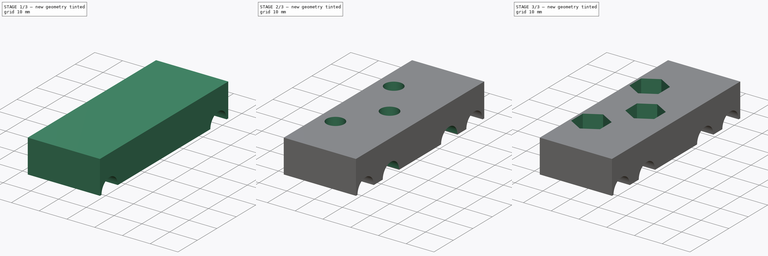
[diagram: build sequence overview — one tinted view per stage of 3, left to right]
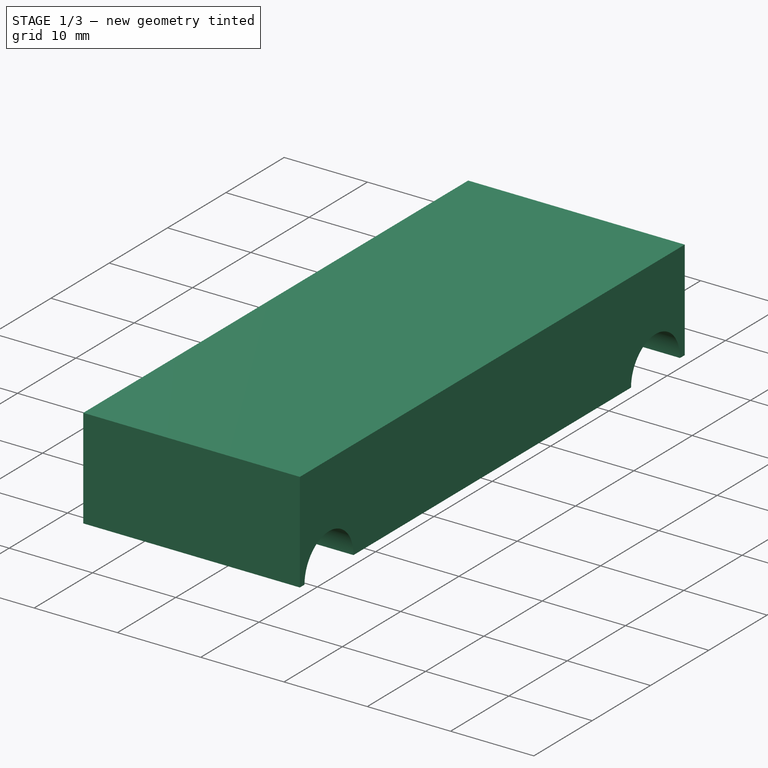
[diagram: stage 1 of 3 — iso view after this stage's code; geometry added in this stage tinted green]
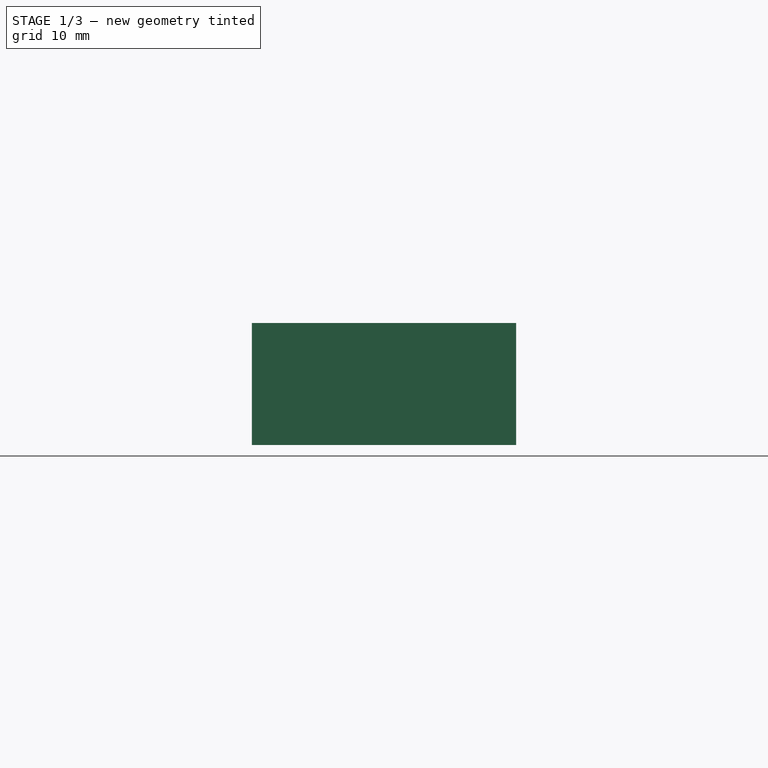
[diagram: stage 1 of 3 — front view after this stage's code; geometry added in this stage tinted green]
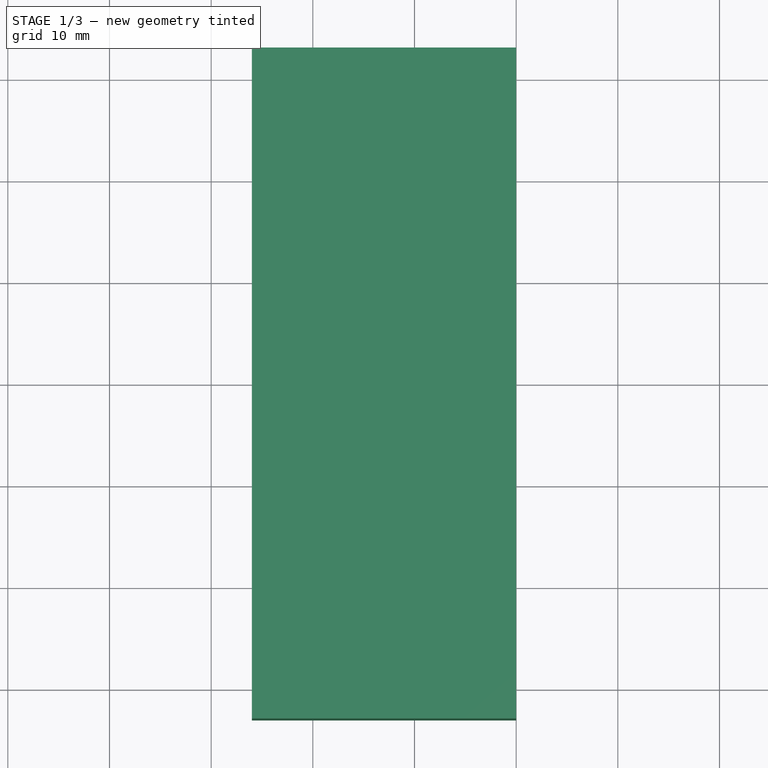
[diagram: stage 1 of 3 — top view after this stage's code; geometry added in this stage tinted green]
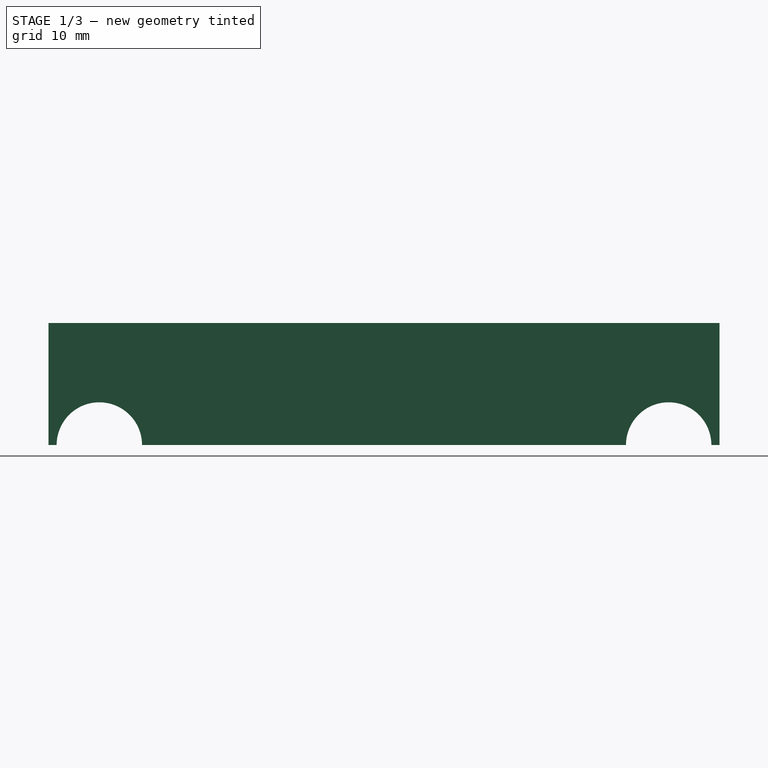
[diagram: stage 1 of 3 — right view after this stage's code; geometry added in this stage tinted green]
FCSTD DOCUMENT  (FreeCAD 0.18R16131 (Git))
Label: idlerSide_8mm_rods_short
License: All rights reserved
LicenseURL: http://en.wikipedia.org/wiki/All_rights_reserved
objects: Sketcher::SketchObject×7, PartDesign::Pocket×6, PartDesign::Pad×1, PartDesign::Body×1
note: 22 computed .brp shape members not serialized (recipe doc carries the construction recipe); baked Part::Feature solids carry a one-line shape summary decoded from their .brp

FEATURE [Sketcher::SketchObject] Sketch
  MapMode = 5
  Support = -> [XY_Plane]
  sketch-geometry (4):
    g0: LineSegment StartX=-26 StartY=33 StartZ=0 EndX=0 EndY=33 EndZ=0
    g1: LineSegment StartX=0 StartY=33 StartZ=0 EndX=0 EndY=-33 EndZ=0
    g2: LineSegment StartX=0 StartY=-33 StartZ=0 EndX=-26 EndY=-33 EndZ=0
    g3: LineSegment StartX=-26 StartY=-33 StartZ=0 EndX=-26 EndY=33 EndZ=0
  constraints (11):
    c: Coincident(g0,g1)
    c: Coincident(g1,g2)
    c: Coincident(g2,g3)
    c: Coincident(g3,g0)
    c: Horizontal(g0)
    c: Horizontal(g2)
    c: Vertical(g3)
    c: DistanceX(g2,g2) = 26
    c: DistanceY(g1,g1) = 66
    c: Symmetric(g1,g0,g-1)
    c: PointOnObject(g-1,g1)
FEATURE [PartDesign::Pad] Pad
  Length = 12
  Length2 = 100
  Profile = -> Sketch
  Type = 0
FEATURE [Sketcher::SketchObject] Sketch001
  MapMode = 5
  Placement = pos=(-26,0,0) rot=(0.57735,-0.57735,-0.57735;2.0944rad)
  Support = -> [Pad]
  sketch-geometry (2):
    g0: Circle CenterX=-28 CenterY=0 CenterZ=0 NormalX=0 NormalY=0 NormalZ=1 AngleXU=0 Radius=4.2
    g1: Circle CenterX=28 CenterY=0 CenterZ=0 NormalX=0 NormalY=0 NormalZ=1 AngleXU=0 Radius=4.2
  constraints (5):
    c: Equal(g0,g1)
    c: Radius(g0) = 4.2
    c: Symmetric(g0,g1,g-2)
    c: PointOnObject(g0,g-1)
    c: DistanceX(g0,g1) = 56
FEATURE [PartDesign::Pocket] Pocket
  BaseFeature = -> Pad
  Length = 5
  Length2 = 100
  Profile = -> Sketch001
  Type = 1
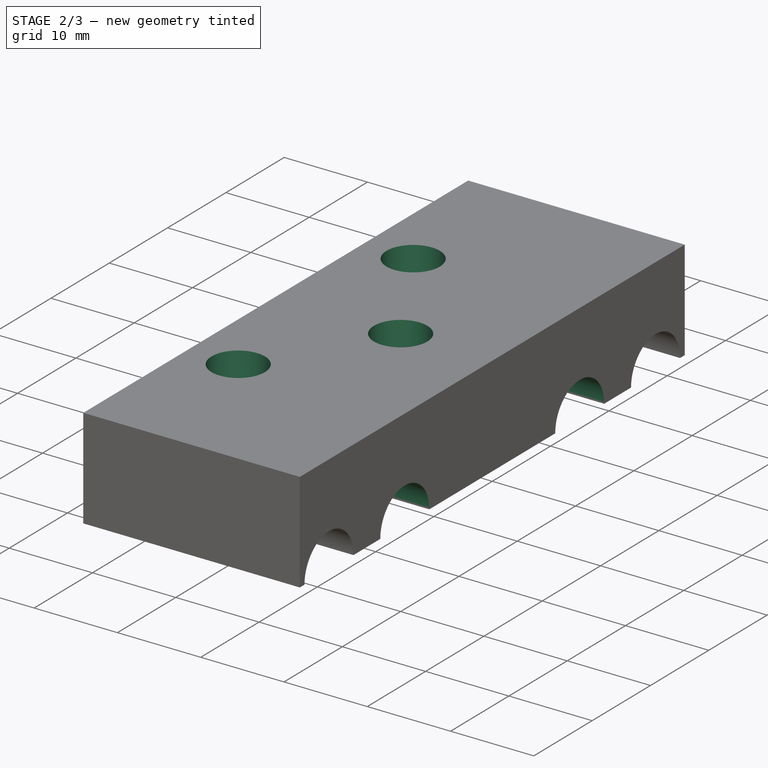
[diagram: stage 2 of 3 — iso view after this stage's code; geometry added in this stage tinted green]
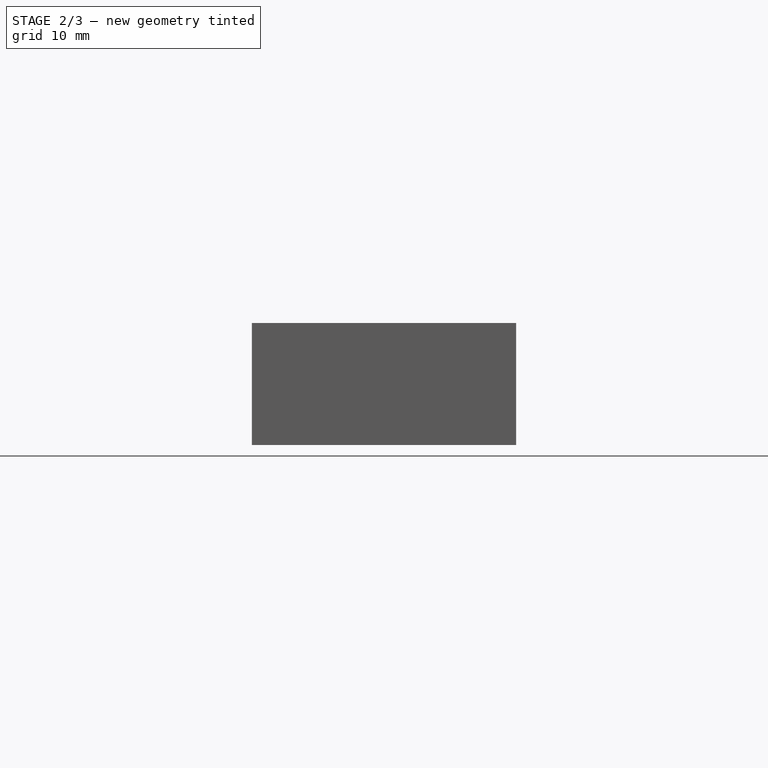
[diagram: stage 2 of 3 — front view after this stage's code; geometry added in this stage tinted green]
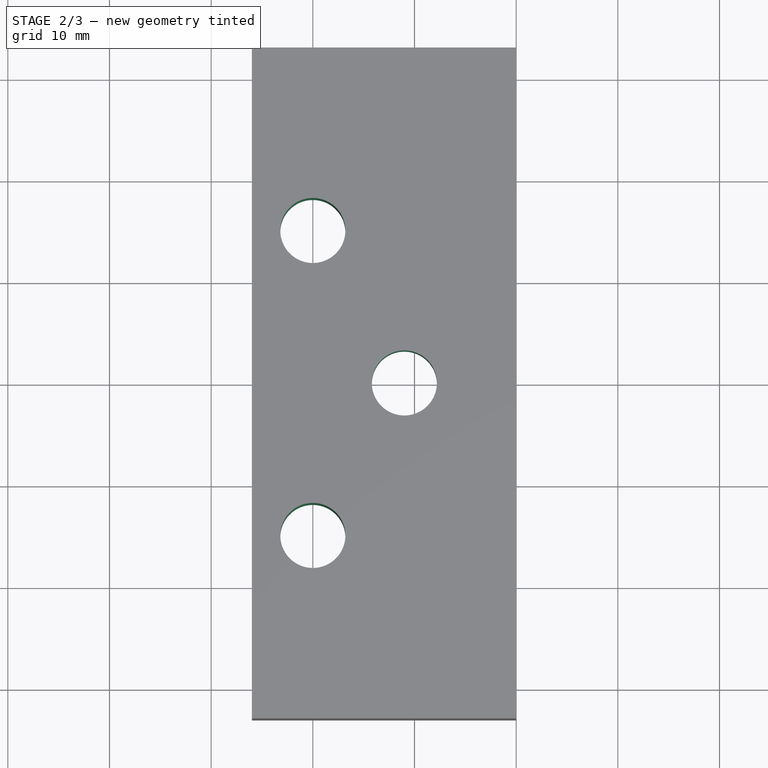
[diagram: stage 2 of 3 — top view after this stage's code; geometry added in this stage tinted green]
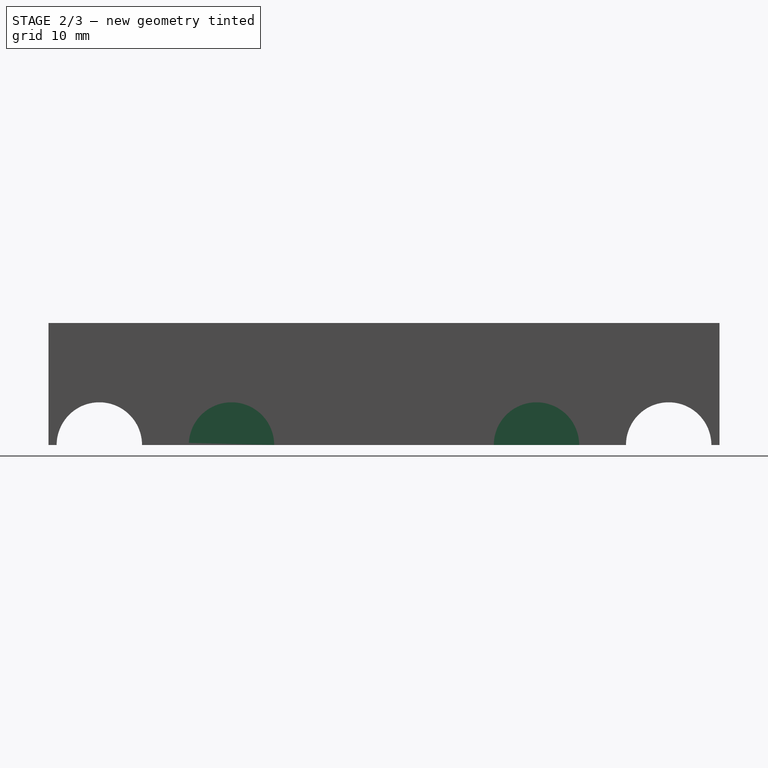
[diagram: stage 2 of 3 — right view after this stage's code; geometry added in this stage tinted green]
FEATURE [Sketcher::SketchObject] Sketch002
  MapMode = 5
  Placement = pos=(0,0,0) rot=(1,0,0;3.14159rad)
  Support = -> [Pocket]
  sketch-geometry (4):
    g0: ArcOfCircle CenterX=-11 CenterY=0 CenterZ=0 NormalX=0 NormalY=0 NormalZ=1 AngleXU=0 Radius=9 StartAngle=4.71239 EndAngle=7.85398
    g1: LineSegment StartX=-11 StartY=9 StartZ=0 EndX=-26 EndY=9 EndZ=0
    g2: LineSegment StartX=-26 StartY=9 StartZ=0 EndX=-26 EndY=-9 EndZ=0
    g3: LineSegment StartX=-26 StartY=-9 StartZ=0 EndX=-11 EndY=-9 EndZ=0
  constraints (13):
    c: PointOnObject(g0,g-1)
    c: Radius(g0) = 9
    c: DistanceX(g0,g-1) = 11
    c: Coincident(g1,g2)
    c: Coincident(g2,g3)
    c: Horizontal(g3)
    c: Horizontal(g1)
    c: Vertical(g2)
    c: Vertical(g3,g0)
    c: Vertical(g0,g1)
    c: DistanceX(g1,g-1) = 26
    c: Coincident(g0,g3)
    c: Coincident(g0,g1)
FEATURE [PartDesign::Pocket] Pocket001
  BaseFeature = -> Pocket
  Length = 4.5
  Length2 = 100
  Profile = -> Sketch002
  Type = 0
FEATURE [Sketcher::SketchObject] Sketch003
  ExternalGeometry = -> [Pocket001]
  MapMode = 5
  Placement = pos=(0,0,0) rot=(1,0,0;3.14159rad)
  Support = -> [Pocket001]
  sketch-geometry (3):
    g0: Circle CenterX=-11 CenterY=0 CenterZ=0 NormalX=0 NormalY=0 NormalZ=1 AngleXU=0 Radius=3.2
    g1: Circle CenterX=-20 CenterY=15 CenterZ=0 NormalX=0 NormalY=0 NormalZ=1 AngleXU=0 Radius=3.2
    g2: Circle CenterX=-20 CenterY=-15 CenterZ=0 NormalX=0 NormalY=0 NormalZ=1 AngleXU=0 Radius=3.2
  constraints (7):
    c: Coincident(g0,g-3)
    c: Radius(g0) = 3.2
    c: Equal(g2,g0)
    c: Equal(g1,g0)
    c: Symmetric(g2,g1,g-1)
    c: DistanceY(g2,g1) = 30
    c: DistanceX(g-4,g1) = 6
FEATURE [PartDesign::Pocket] Pocket002
  BaseFeature = -> Pocket001
  Length = 5
  Length2 = 100
  Profile = -> Sketch003
  Type = 1
FEATURE [Sketcher::SketchObject] Sketch004
  MapMode = 5
  Placement = pos=(0,0,0) rot=(0.57735,0.57735,0.57735;2.0944rad)
  Support = -> [Pocket002]
  sketch-geometry (2):
    g0: Circle CenterX=-15 CenterY=0 CenterZ=0 NormalX=0 NormalY=0 NormalZ=1 AngleXU=0 Radius=4.2
    g1: Circle CenterX=15 CenterY=0 CenterZ=0 NormalX=0 NormalY=0 NormalZ=1 AngleXU=0 Radius=4.2
  constraints (5):
    c: Equal(g0,g1)
    c: Symmetric(g0,g1,g-2)
    c: Radius(g0) = 4.2
    c: PointOnObject(g0,g-1)
    c: DistanceX(g0,g1) = 30
FEATURE [PartDesign::Pocket] Pocket003
  BaseFeature = -> Pocket002
  Length = 7
  Length2 = 100
  Profile = -> Sketch004
  Type = 0
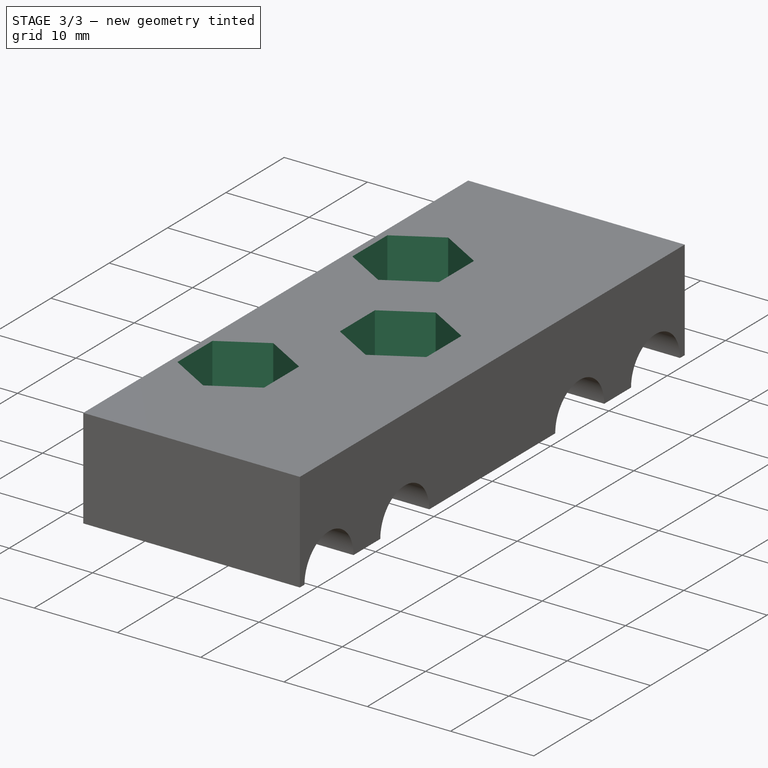
[diagram: stage 3 of 3 — iso view after this stage's code; geometry added in this stage tinted green]
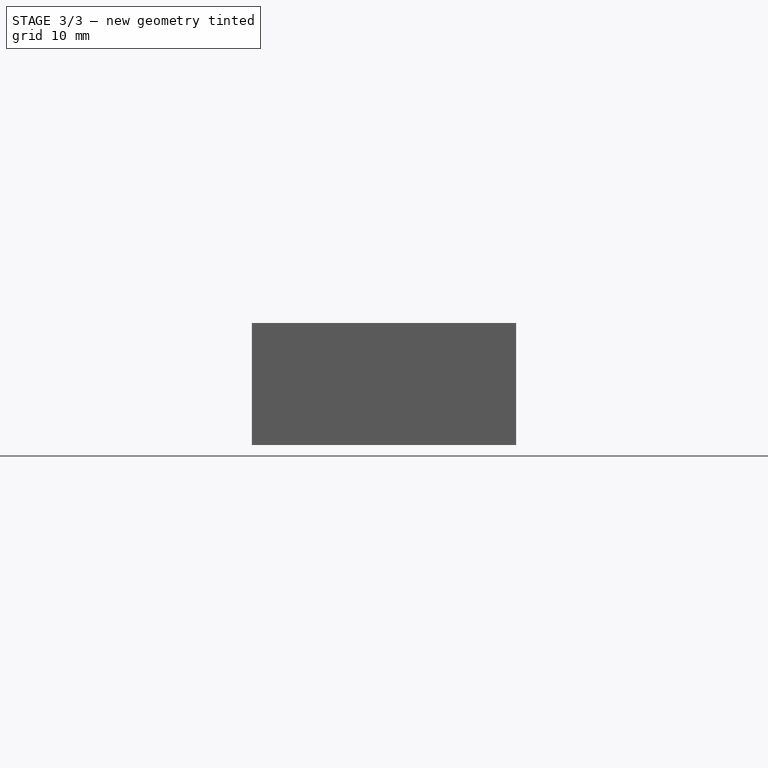
[diagram: stage 3 of 3 — front view after this stage's code; geometry added in this stage tinted green]
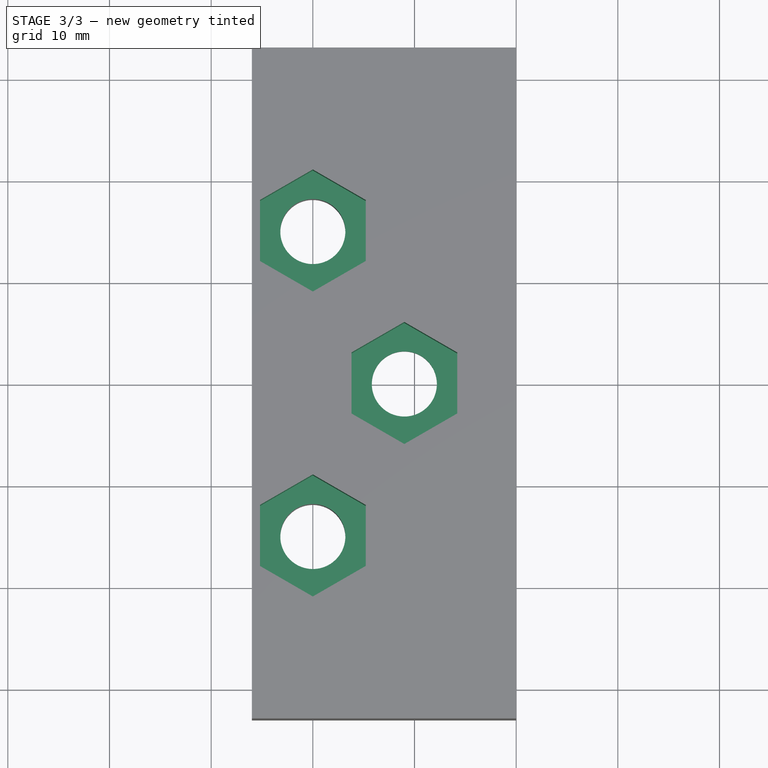
[diagram: stage 3 of 3 — top view after this stage's code; geometry added in this stage tinted green]
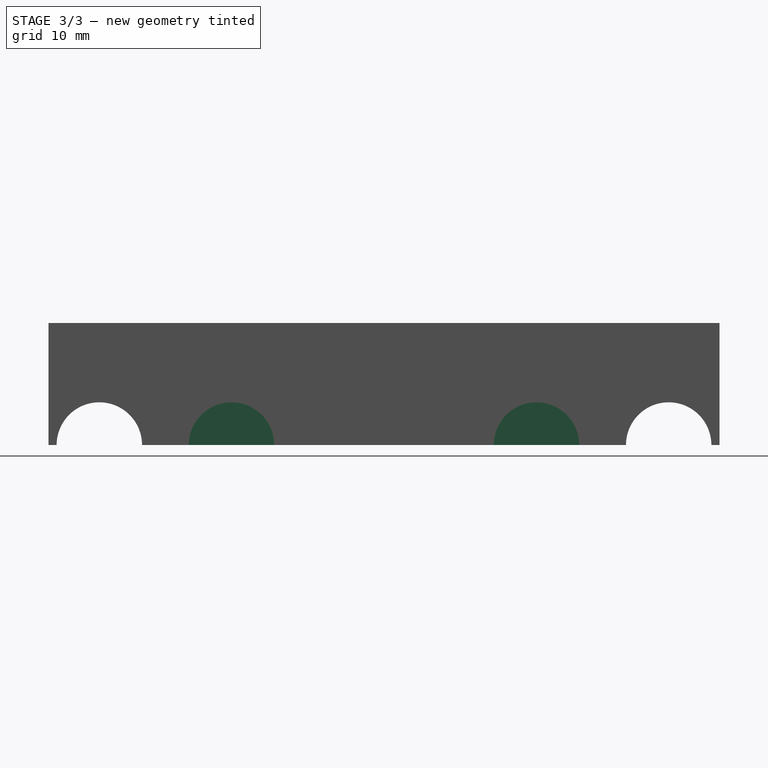
[diagram: stage 3 of 3 — right view after this stage's code; geometry added in this stage tinted green]
FEATURE [Sketcher::SketchObject] Sketch005
  ExternalGeometry = -> [Pocket003]
  MapMode = 5
  Placement = pos=(-7,0,0) rot=(0.57735,0.57735,0.57735;2.0944rad)
  Support = -> [Pocket003]
  sketch-geometry (14):
    g0: LineSegment StartX=-9.8 StartY=-3.00222 StartZ=0 EndX=-9.8 EndY=3.00222 EndZ=0
    g1: LineSegment StartX=-9.8 StartY=3.00222 StartZ=0 EndX=-15 EndY=6.00444 EndZ=0
    g2: LineSegment StartX=-15 StartY=6.00444 StartZ=0 EndX=-20.2 EndY=3.00222 EndZ=0
    g3: LineSegment StartX=-20.2 StartY=3.00222 StartZ=0 EndX=-20.2 EndY=-3.00222 EndZ=0
    g4: LineSegment StartX=-20.2 StartY=-3.00222 StartZ=0 EndX=-15 EndY=-6.00444 EndZ=0
    g5: LineSegment StartX=-15 StartY=-6.00444 StartZ=0 EndX=-9.8 EndY=-3.00222 EndZ=0
    g6: Circle [constr] CenterX=-15 CenterY=0 CenterZ=0 NormalX=0 NormalY=0 NormalZ=1 AngleXU=0 Radius=6.00444
    g7: LineSegment StartX=15 StartY=-6.00444 StartZ=0 EndX=20.2 EndY=-3.00222 EndZ=0
    g8: LineSegment StartX=20.2 StartY=-3.00222 StartZ=0 EndX=20.2 EndY=3.00222 EndZ=0
    g9: LineSegment StartX=20.2 StartY=3.00222 StartZ=0 EndX=15 EndY=6.00444 EndZ=0
    g10: LineSegment StartX=15 StartY=6.00444 StartZ=0 EndX=9.8 EndY=3.00222 EndZ=0
    g11: LineSegment StartX=9.8 StartY=3.00222 StartZ=0 EndX=9.8 EndY=-3.00222 EndZ=0
    g12: LineSegment StartX=9.8 StartY=-3.00222 StartZ=0 EndX=15 EndY=-6.00444 EndZ=0
    g13: Circle [constr] CenterX=15 CenterY=0 CenterZ=0 NormalX=0 NormalY=0 NormalZ=1 AngleXU=0 Radius=6.00444
  constraints (32):
    c: Coincident(g0,g1)
    c: Coincident(g1,g2)
    c: Coincident(g2,g3)
    c: Coincident(g3,g4)
    c: Coincident(g4,g5)
    c: Coincident(g5,g0)
    c: Equal(g0, g1-g5) x5
    c: PointOnObject(g0,g6)
    c: PointOnObject(g1,g6)
    c: PointOnObject(g2,g6)
    c: PointOnObject(g3,g6)
    c: PointOnObject(g4,g6)
    c: PointOnObject(g5,g6)
    c: Vertical(g0)
    c: DistanceX(g3,g0) = 10.4
    c: Coincident(g6,g-3)
    c: Coincident(g7,g8)
    c: Coincident(g8,g9)
    c: Coincident(g9,g10)
    c: Coincident(g10,g11)
    c: Coincident(g11,g12)
    c: Coincident(g12,g7)
    c: Equal(g7, g8-g12) x5
    c: PointOnObject(g7,g13)
    c: PointOnObject(g8,g13)
    c: PointOnObject(g9,g13)
    c: PointOnObject(g10,g13)
    c: PointOnObject(g11,g13)
    c: PointOnObject(g12,g13)
    c: Vertical(g11)
    c: Symmetric(g6,g13,g-2)
    c: DistanceX(g11,g7) = 10.4
FEATURE [PartDesign::Pocket] Pocket004
  BaseFeature = -> Pocket003
  Length = 5.5
  Length2 = 100
  Profile = -> Sketch005
  Type = 0
FEATURE [Sketcher::SketchObject] Sketch006
  ExternalGeometry = -> [Pocket004]
  MapMode = 5
  Placement = pos=(0,0,12) rot=(0,0,1;0rad)
  Support = -> [Pocket004]
  sketch-geometry (21):
    g0: LineSegment StartX=-14.8 StartY=11.9978 StartZ=0 EndX=-14.8 EndY=18.0022 EndZ=0
    g1: LineSegment StartX=-14.8 StartY=18.0022 StartZ=0 EndX=-20 EndY=21.0044 EndZ=0
    g2: LineSegment StartX=-20 StartY=21.0044 StartZ=0 EndX=-25.2 EndY=18.0022 EndZ=0
    g3: LineSegment StartX=-25.2 StartY=18.0022 StartZ=0 EndX=-25.2 EndY=11.9978 EndZ=0
    g4: LineSegment StartX=-25.2 StartY=11.9978 StartZ=0 EndX=-20 EndY=8.99556 EndZ=0
    g5: LineSegment StartX=-20 StartY=8.99556 StartZ=0 EndX=-14.8 EndY=11.9978 EndZ=0
    g6: Circle [constr] CenterX=-20 CenterY=15 CenterZ=0 NormalX=0 NormalY=0 NormalZ=1 AngleXU=0 Radius=6.00444
    g7: LineSegment StartX=-14.8 StartY=-18.0022 StartZ=0 EndX=-14.8 EndY=-11.9978 EndZ=0
    g8: LineSegment StartX=-14.8 StartY=-11.9978 StartZ=0 EndX=-20 EndY=-8.99556 EndZ=0
    g9: LineSegment StartX=-20 StartY=-8.99556 StartZ=0 EndX=-25.2 EndY=-11.9978 EndZ=0
    g10: LineSegment StartX=-25.2 StartY=-11.9978 StartZ=0 EndX=-25.2 EndY=-18.0022 EndZ=0
    g11: LineSegment StartX=-25.2 StartY=-18.0022 StartZ=0 EndX=-20 EndY=-21.0044 EndZ=0
    g12: LineSegment StartX=-20 StartY=-21.0044 StartZ=0 EndX=-14.8 EndY=-18.0022 EndZ=0
    g13: Circle [constr] CenterX=-20 CenterY=-15 CenterZ=0 NormalX=0 NormalY=0 NormalZ=1 AngleXU=0 Radius=6.00444
    g14: LineSegment StartX=-5.8 StartY=-3.00222 StartZ=0 EndX=-5.8 EndY=3.00222 EndZ=0
    g15: LineSegment StartX=-5.8 StartY=3.00222 StartZ=0 EndX=-11 EndY=6.00444 EndZ=0
    g16: LineSegment StartX=-11 StartY=6.00444 StartZ=0 EndX=-16.2 EndY=3.00222 EndZ=0
    g17: LineSegment StartX=-16.2 StartY=3.00222 StartZ=0 EndX=-16.2 EndY=-3.00222 EndZ=0
    g18: LineSegment StartX=-16.2 StartY=-3.00222 StartZ=0 EndX=-11 EndY=-6.00444 EndZ=0
    g19: LineSegment StartX=-11 StartY=-6.00444 StartZ=0 EndX=-5.8 EndY=-3.00222 EndZ=0
    g20: Circle [constr] CenterX=-11 CenterY=0 CenterZ=0 NormalX=0 NormalY=0 NormalZ=1 AngleXU=0 Radius=6.00444
  constraints (47):
    c: Coincident(g0,g1)
    c: Coincident(g1,g2)
    c: Coincident(g2,g3)
    c: Coincident(g3,g4)
    c: Coincident(g4,g5)
    c: Coincident(g5,g0)
    c: Equal(g0, g1-g5) x5
    c: PointOnObject(g0,g6)
    c: PointOnObject(g1,g6)
    c: PointOnObject(g2,g6)
    c: PointOnObject(g3,g6)
    c: PointOnObject(g4,g6)
    c: PointOnObject(g5,g6)
    c: Coincident(g7,g8)
    c: Coincident(g8,g9)
    c: Coincident(g9,g10)
    c: Coincident(g10,g11)
    c: Coincident(g11,g12)
    c: Coincident(g12,g7)
    c: Equal(g7, g8-g12) x5
    c: PointOnObject(g7,g13)
    c: PointOnObject(g8,g13)
    c: PointOnObject(g9,g13)
    c: PointOnObject(g10,g13)
    c: PointOnObject(g11,g13)
    c: PointOnObject(g12,g13)
    c: Vertical(g3)
    c: Vertical(g10)
    c: DistanceX(g10,g7) = 10.4
    c: Coincident(g6,g-3)
    c: Coincident(g14,g15)
    c: Coincident(g15,g16)
    c: Coincident(g16,g17)
    c: Coincident(g17,g18)
    c: Coincident(g18,g19)
    c: Coincident(g19,g14)
    c: Equal(g14, g15-g19) x5
    c: PointOnObject(g14,g20)
    c: PointOnObject(g15,g20)
    c: PointOnObject(g16,g20)
    c: PointOnObject(g17,g20)
    c: PointOnObject(g18,g20)
    c: PointOnObject(g19,g20)
    c: Vertical(g17)
    c: DistanceX(g17,g14) = 10.4
    c: Coincident(g20,g-4)
    c: Coincident(g13,g-5)
FEATURE [PartDesign::Pocket] Pocket005
  BaseFeature = -> Pocket004
  Length = 6
  Length2 = 100
  Profile = -> Sketch006
  Type = 0
FEATURE [PartDesign::Body] Body
  Group = -> [Sketch,Pad,Sketch001,Pocket,Sketch002,Pocket001,Sketch003,Pocket002,Sketch004,Pocket003,Sketch005,Pocket004,Sketch006,Pocket005]
  Origin = -> Origin
  Tip = -> Pocket005
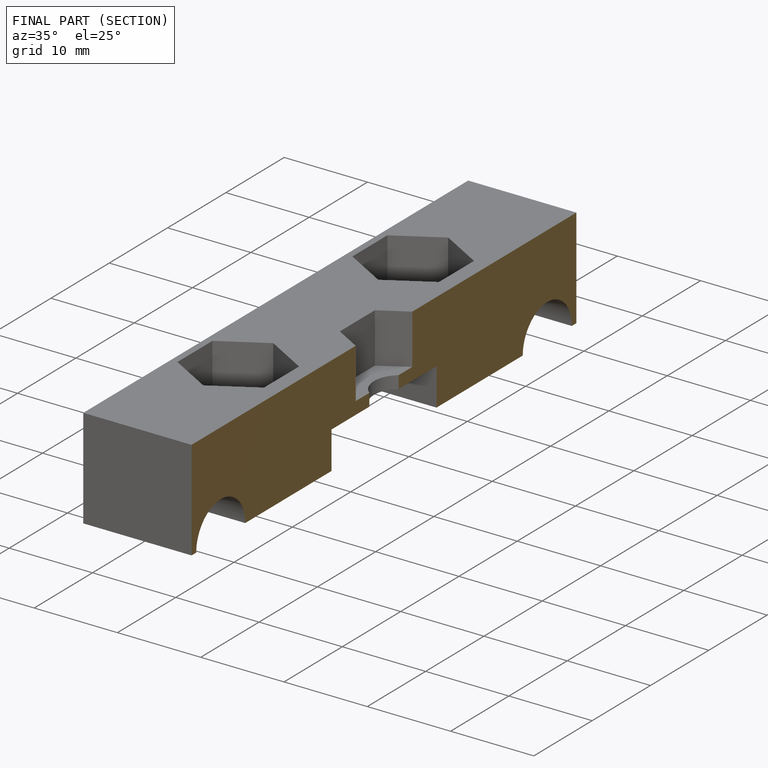
[diagram: finished part — half-section view (interior)]
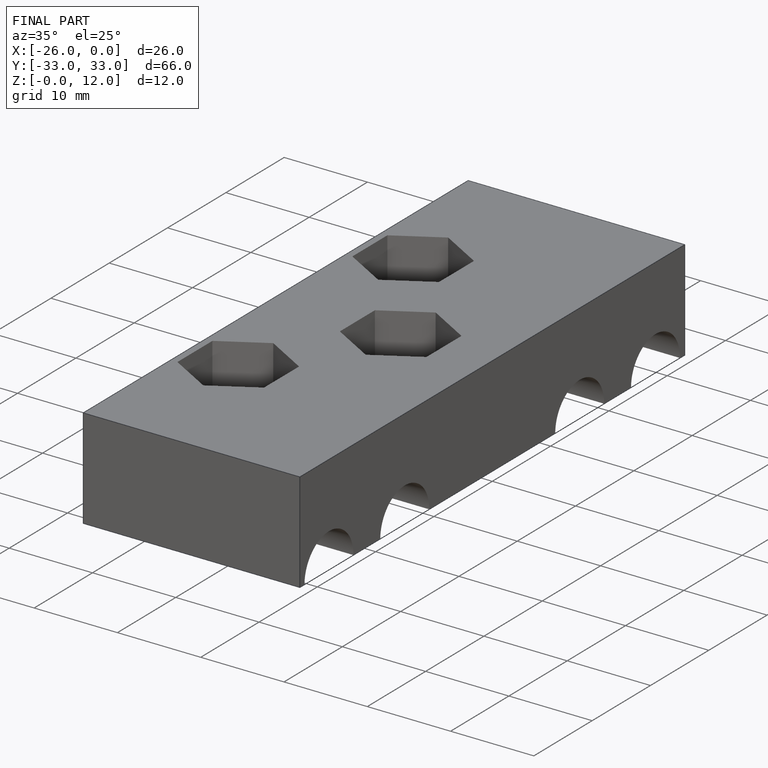
[diagram: finished part — iso view with bounding-box wireframe]
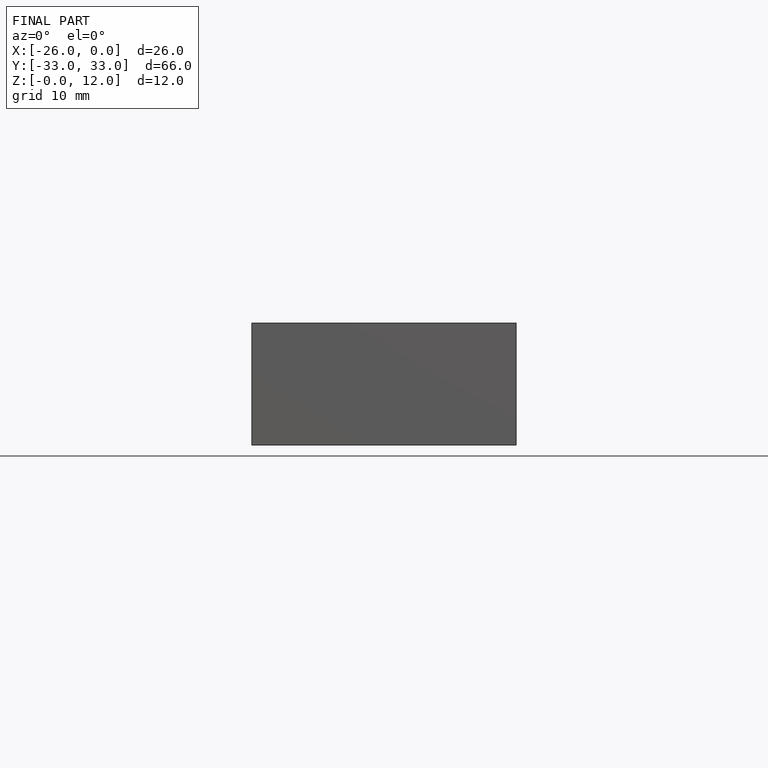
[diagram: finished part — front view with bounding-box wireframe]
